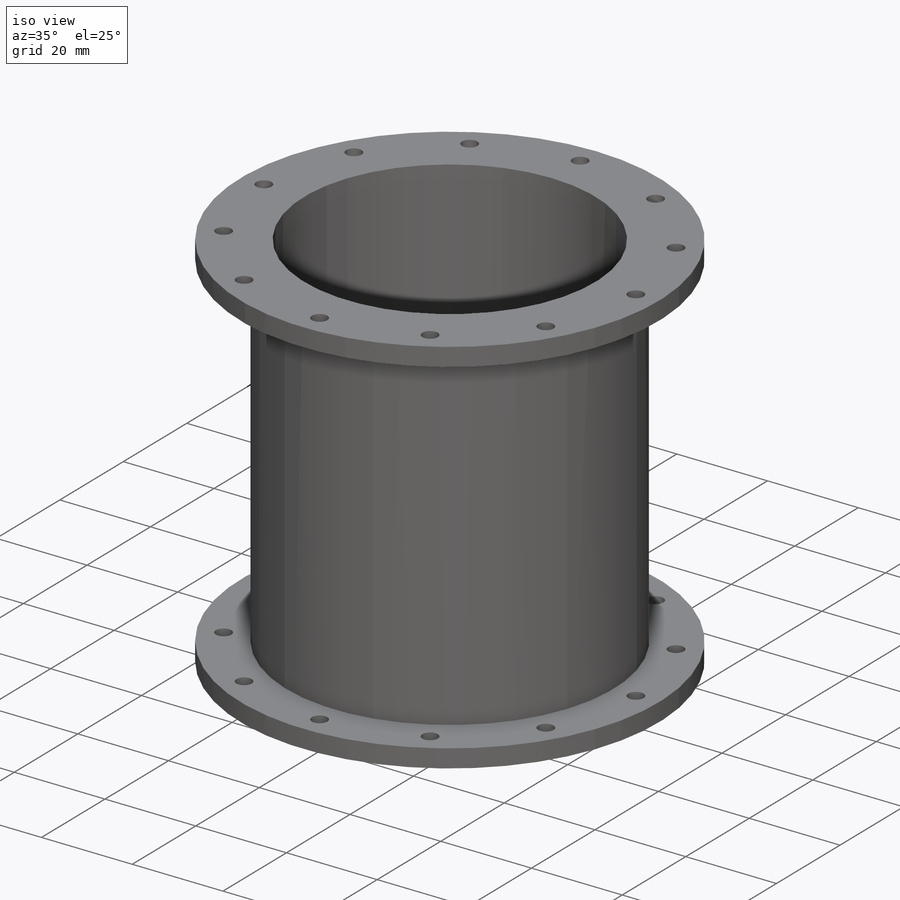
[diagram: iso view]
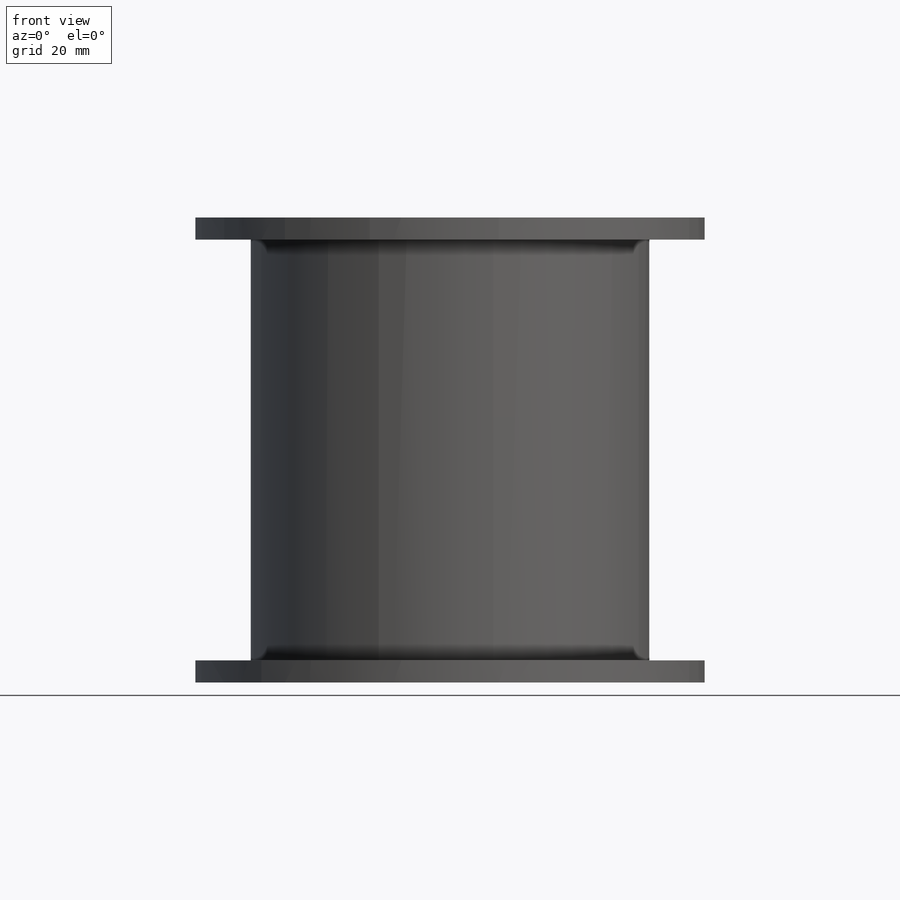
[diagram: front view]
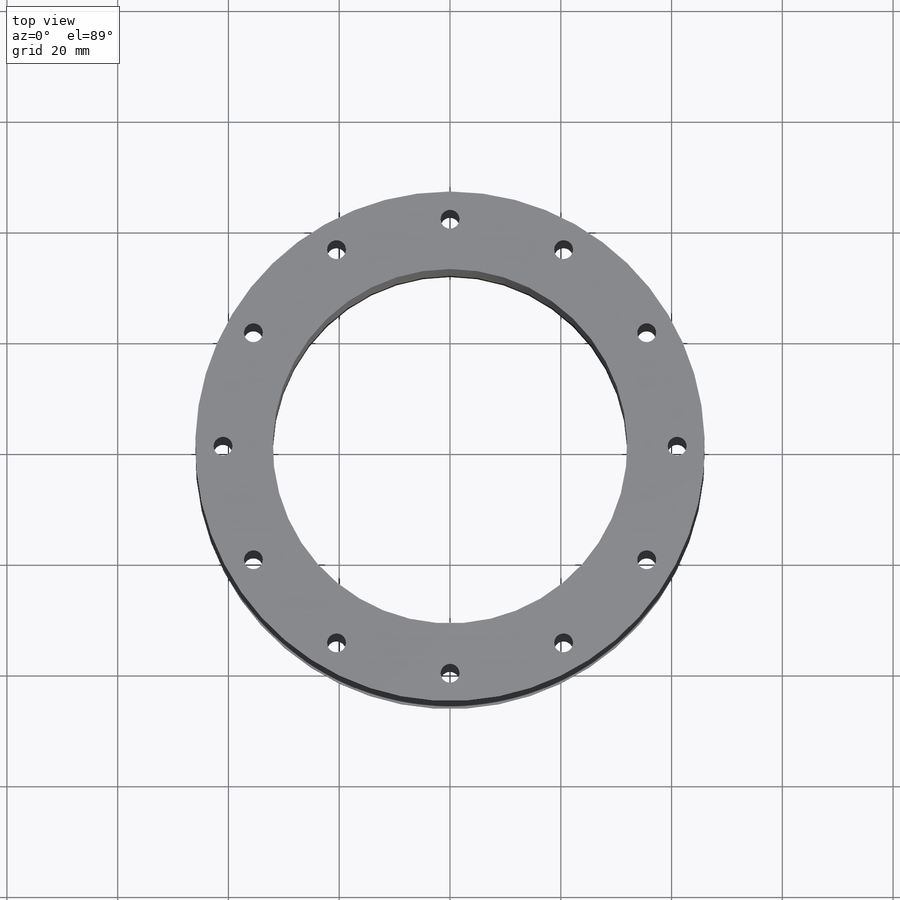
[diagram: top view]
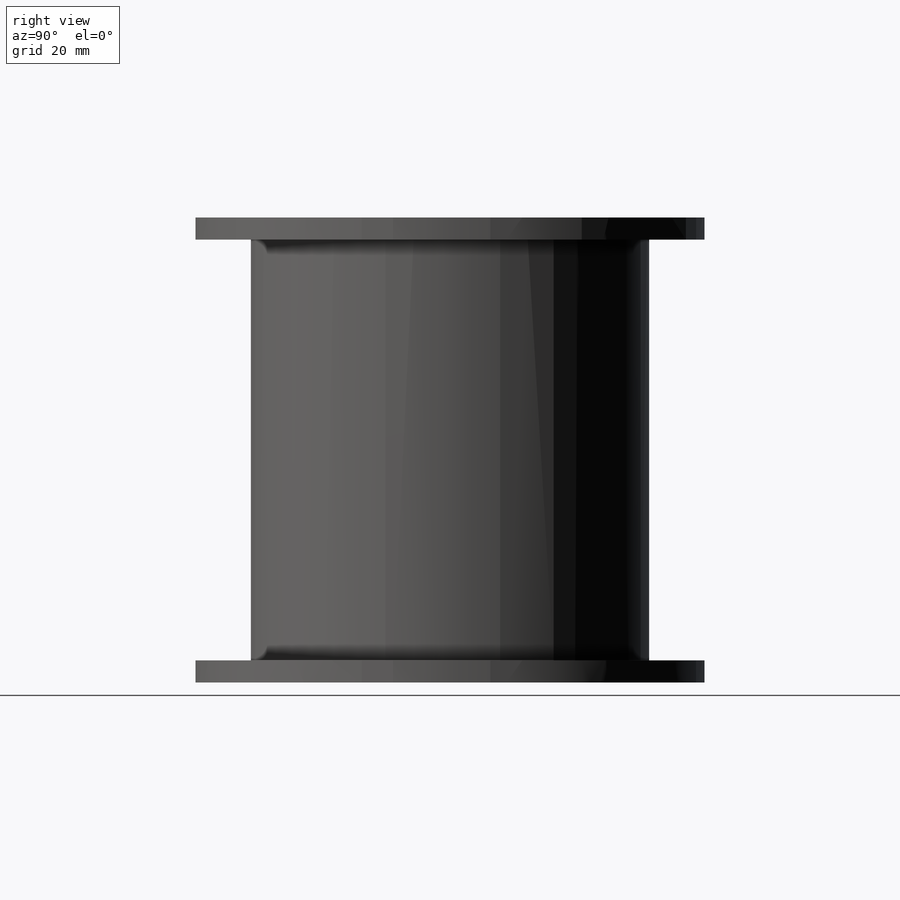
[diagram: right view]
SOLIDWORKS PART (.sldprt)
format: sldprt  version: not decoded by parser v0  size: 258,048 bytes
history: native  units: mm
features: sketch x7, hole x2, material x1, revolve x1, pattern_circular x1 (+11 scaffold rows collapsed)
feature tree (23):
  scaffold x11  (default folders/planes/origin — collapsed)
  material  "AISI 316 Annealed Stainless Steel Bar (SS)"
  sketch  "Sketch1"  dims[D1=32.0mm D2=46.0mm D3=4.0mm D4=4.0mm D5=~83.984027mm D6=4.0mm D7=46.0mm]
  revolve  "Revolve1"  Angle=360deg
  sketch  "Sketch2"  dims[D1=5.0mm]
  hole  "M3 Clearance Hole1"  Diameter=3.4mm Depth=4.001mm
  sketch  "Sketch4"
  sketch  "Sketch3"  dims[hole-wizard template sketch: 60 standard entries collapsed; hole parameters kept: c18.Thru Hole Depth=4.001mm]
  sketch  "Sketch5"
  hole  "M3 Clearance Hole2"  Diameter=3.4mm Depth=4.001mm
  sketch  "Sketch7"
  sketch  "Sketch6"  dims[hole-wizard template sketch: 60 standard entries collapsed; hole parameters kept: c18.Thru Hole Depth=4.001mm]
  pattern_circular  "CirPattern1"  Count=12 Angle=360deg
decode coverage: 8 of 11 modeling features carry decoded parameters
note: ~ marks probable driven/reference dimensions
note: suppression state not decoded; provenance and decode notes live in map.json
